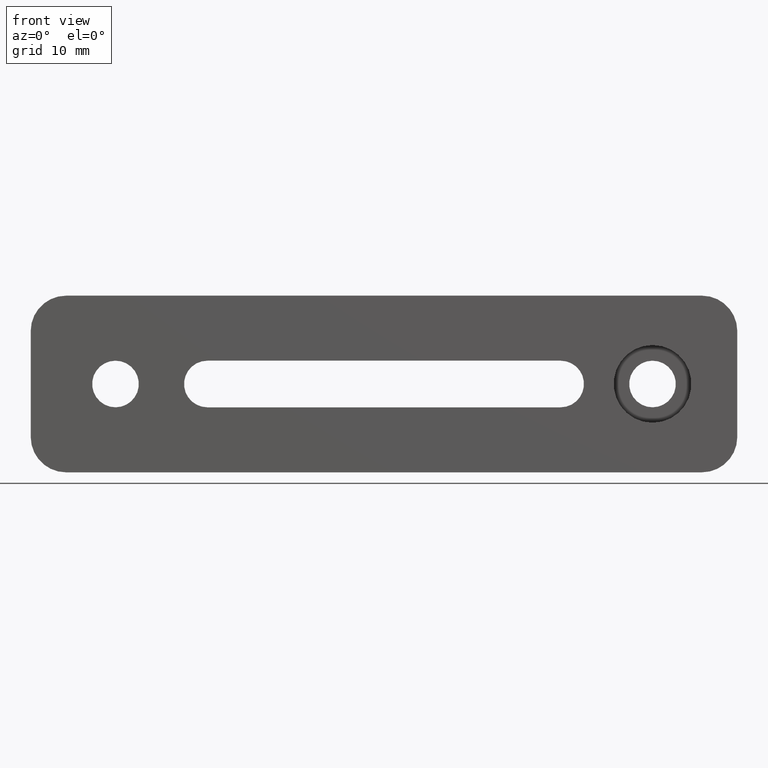
[diagram: clean part render]
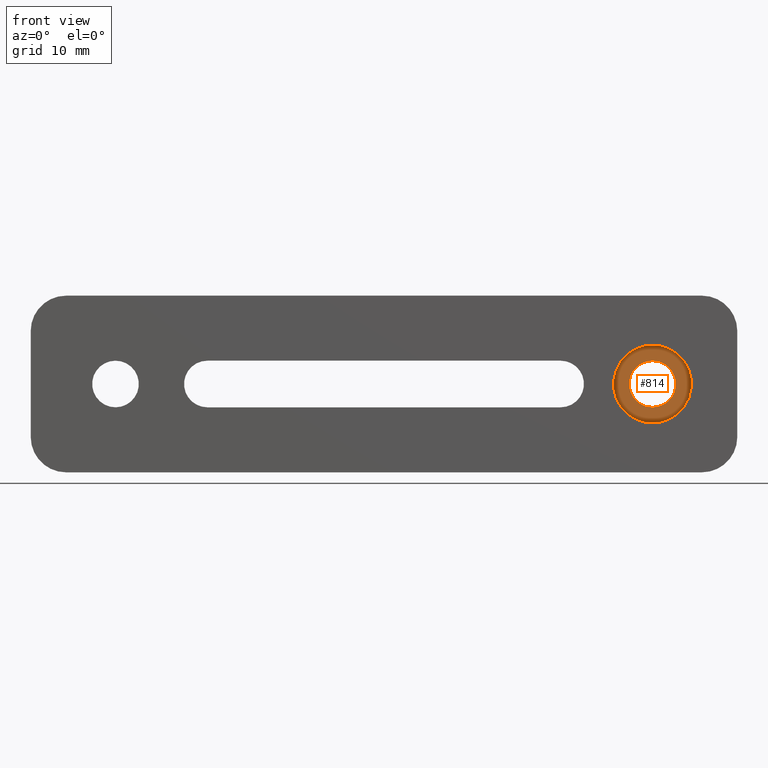
[diagram: same view with one face highlighted and labeled with its STEP entity id]
A machine part, front view. The second image highlights one B-rep face of the part: STEP entity #814.
In plain terms, the highlighted planar face has unit normal (0, 1, 0).
Its self-contained STEP definition (entity closure, byte-faithful):
#19 = CIRCLE ( 'NONE', #629, 5.499999999999998200 ) ;
#60 = CARTESIAN_POINT ( 'NONE',  ( 38.00000000000000000, -3.500000000000001300, 0.0000000000000000000 ) ) ;
#67 = VERTEX_POINT ( 'NONE', #198 ) ;
#75 = DIRECTION ( 'NONE',  ( 0.0000000000000000000, 0.0000000000000000000, -1.000000000000000000 ) ) ;
#87 = AXIS2_PLACEMENT_3D ( 'NONE', #787, #361, #640 ) ;
#137 = EDGE_LOOP ( 'NONE', ( #645, #635 ) ) ;
#185 = CIRCLE ( 'NONE', #776, 5.499999999999998200 ) ;
#196 = CIRCLE ( 'NONE', #551, 3.300000000000011400 ) ;
#198 = CARTESIAN_POINT ( 'NONE',  ( 38.00000000000000000, -3.500000000000001300, -5.499999999999998200 ) ) ;
#231 = CARTESIAN_POINT ( 'NONE',  ( 41.30000000000001100, -3.500000000000001300, 0.0000000000000000000 ) ) ;
#243 = CARTESIAN_POINT ( 'NONE',  ( 38.00000000000000000, -3.500000000000001300, 3.300000000000010900 ) ) ;
#250 = VERTEX_POINT ( 'NONE', #427 ) ;
#266 = EDGE_LOOP ( 'NONE', ( #463, #300 ) ) ;
#271 = CARTESIAN_POINT ( 'NONE',  ( 38.00000000000000000, -3.500000000000001300, 0.0000000000000000000 ) ) ;
#300 = ORIENTED_EDGE ( 'NONE', *, *, #521, .F. ) ;
#322 = CIRCLE ( 'NONE', #87, 3.300000000000011400 ) ;
#323 = VERTEX_POINT ( 'NONE', #393 ) ;
#361 = DIRECTION ( 'NONE',  ( -0.0000000000000000000, -1.000000000000000000, -0.0000000000000000000 ) ) ;
#371 = DIRECTION ( 'NONE',  ( -0.0000000000000000000, -1.000000000000000000, -0.0000000000000000000 ) ) ;
#380 = DIRECTION ( 'NONE',  ( 0.0000000000000000000, 0.0000000000000000000, -1.000000000000000000 ) ) ;
#393 = CARTESIAN_POINT ( 'NONE',  ( 38.00000000000000000, -3.500000000000001300, 5.499999999999998200 ) ) ;
#427 = CARTESIAN_POINT ( 'NONE',  ( 38.00000000000000000, -3.500000000000001300, -3.300000000000011400 ) ) ;
#429 = CARTESIAN_POINT ( 'NONE',  ( 38.00000000000000000, -3.500000000000001300, 0.0000000000000000000 ) ) ;
#463 = ORIENTED_EDGE ( 'NONE', *, *, #903, .F. ) ;
#521 = EDGE_CURVE ( 'NONE', #853, #250, #196, .T. ) ;
#551 = AXIS2_PLACEMENT_3D ( 'NONE', #271, #602, #682 ) ;
#584 = FACE_BOUND ( 'NONE', #266, .T. ) ;
#602 = DIRECTION ( 'NONE',  ( -0.0000000000000000000, -1.000000000000000000, -0.0000000000000000000 ) ) ;
#629 = AXIS2_PLACEMENT_3D ( 'NONE', #60, #371, #380 ) ;
#635 = ORIENTED_EDGE ( 'NONE', *, *, #799, .T. ) ;
#640 = DIRECTION ( 'NONE',  ( 0.0000000000000000000, 0.0000000000000000000, -1.000000000000000000 ) ) ;
#645 = ORIENTED_EDGE ( 'NONE', *, *, #813, .T. ) ;
#682 = DIRECTION ( 'NONE',  ( 0.0000000000000000000, 0.0000000000000000000, -1.000000000000000000 ) ) ;
#718 = DIRECTION ( 'NONE',  ( 0.0000000000000000000, 1.000000000000000000, 0.0000000000000000000 ) ) ;
#734 = FACE_OUTER_BOUND ( 'NONE', #137, .T. ) ;
#759 = PLANE ( 'NONE',  #926 ) ;
#776 = AXIS2_PLACEMENT_3D ( 'NONE', #429, #785, #75 ) ;
#785 = DIRECTION ( 'NONE',  ( -0.0000000000000000000, -1.000000000000000000, -0.0000000000000000000 ) ) ;
#787 = CARTESIAN_POINT ( 'NONE',  ( 38.00000000000000000, -3.500000000000001300, 0.0000000000000000000 ) ) ;
#799 = EDGE_CURVE ( 'NONE', #323, #67, #19, .T. ) ;
#813 = EDGE_CURVE ( 'NONE', #67, #323, #185, .T. ) ;
#814 = ADVANCED_FACE ( 'NONE', ( #584, #734 ), #759, .F. ) ;
#816 = DIRECTION ( 'NONE',  ( 0.0000000000000000000, -0.0000000000000000000, 1.000000000000000000 ) ) ;
#853 = VERTEX_POINT ( 'NONE', #243 ) ;
#903 = EDGE_CURVE ( 'NONE', #250, #853, #322, .T. ) ;
#926 = AXIS2_PLACEMENT_3D ( 'NONE', #231, #718, #816 ) ;